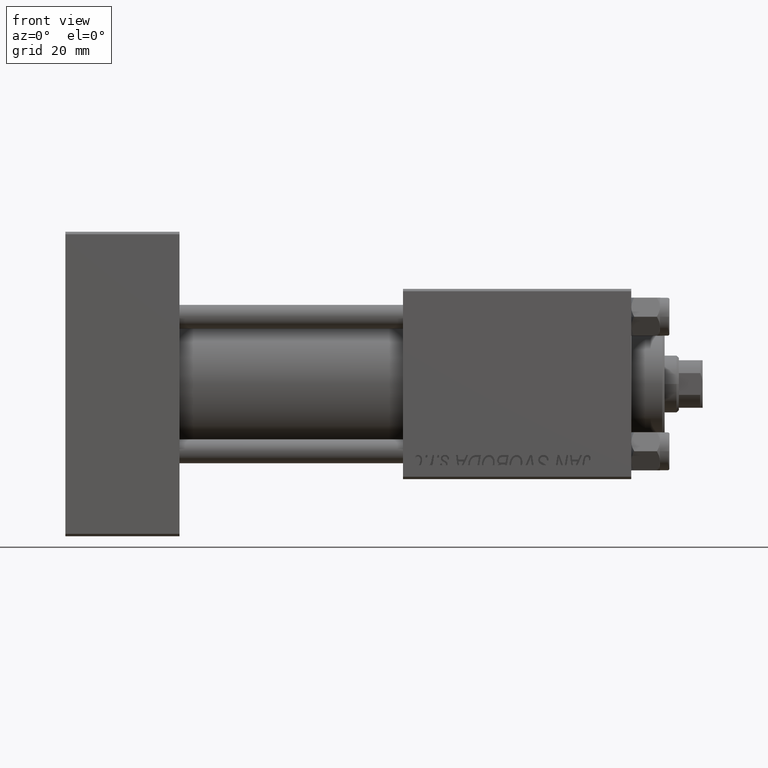
[diagram: clean part render]
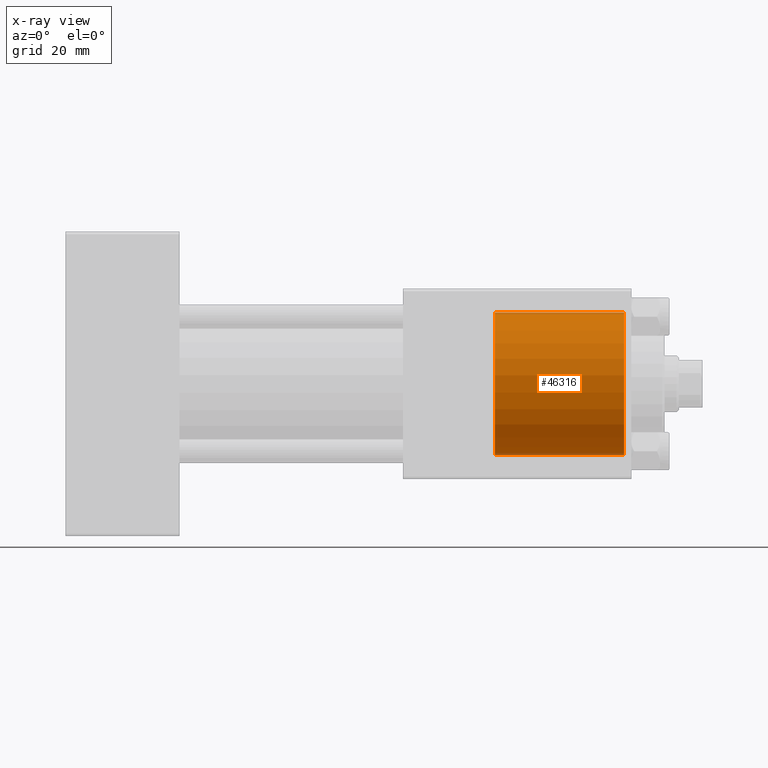
[diagram: x-ray — body ghosted, one internal face saturated and labeled with its STEP entity id]
A machine part, front view, then the same camera in x-ray: the body is ghosted and one INTERNAL B-rep face — a face not visible from any outside direction — is saturated and labeled: STEP entity #46316.
In plain terms, the highlighted cylindrical surface (partial cylindrical patch) has radius 15 mm, axis along (1, 0, 0).
Its self-contained STEP definition (entity closure, byte-faithful):
#964 = FACE_OUTER_BOUND ( 'NONE', #43972, .T. ) ;
#3750 = DIRECTION ( 'NONE',  ( 1.000000000000000000, 0.000000000000000000, 0.000000000000000000 ) ) ;
#4147 = VERTEX_POINT ( 'NONE', #16844 ) ;
#4505 = DIRECTION ( 'NONE',  ( 0.000000000000000000, 0.000000000000000000, -1.000000000000000000 ) ) ;
#8387 = VERTEX_POINT ( 'NONE', #36519 ) ;
#11302 = CIRCLE ( 'NONE', #48424, 15.00000000000000000 ) ;
#11833 = CARTESIAN_POINT ( 'NONE',  ( 117.5000000000000142, 0.000000000000000000, 0.000000000000000000 ) ) ;
#12081 = CARTESIAN_POINT ( 'NONE',  ( 90.30000000000001137, 0.000000000000000000, 0.000000000000000000 ) ) ;
#13715 = CARTESIAN_POINT ( 'NONE',  ( 90.30000000000001137, 1.836970198721029589E-15, 15.00000000000000000 ) ) ;
#14655 = DIRECTION ( 'NONE',  ( 1.000000000000000000, -0.000000000000000000, -0.000000000000000000 ) ) ;
#14899 = CARTESIAN_POINT ( 'NONE',  ( 90.30000000000001137, 0.000000000000000000, -15.00000000000000000 ) ) ;
#16369 = CARTESIAN_POINT ( 'NONE',  ( 117.5000000000000142, 1.836970198721029589E-15, 15.00000000000000000 ) ) ;
#16844 = CARTESIAN_POINT ( 'NONE',  ( 90.30000000000001137, 0.000000000000000000, -15.00000000000000000 ) ) ;
#19155 = DIRECTION ( 'NONE',  ( 0.000000000000000000, 0.000000000000000000, -1.000000000000000000 ) ) ;
#20389 = DIRECTION ( 'NONE',  ( 1.000000000000000000, 0.000000000000000000, 0.000000000000000000 ) ) ;
#22020 = ORIENTED_EDGE ( 'NONE', *, *, #28136, .T. ) ;
#22757 = EDGE_CURVE ( 'NONE', #8387, #46281, #32375, .T. ) ;
#23679 = DIRECTION ( 'NONE',  ( 1.000000000000000000, -0.000000000000000000, -0.000000000000000000 ) ) ;
#25942 = EDGE_CURVE ( 'NONE', #4147, #36218, #42162, .T. ) ;
#27220 = CARTESIAN_POINT ( 'NONE',  ( 90.30000000000001137, 0.000000000000000000, 0.000000000000000000 ) ) ;
#27975 = CYLINDRICAL_SURFACE ( 'NONE', #43910, 15.00000000000000000 ) ;
#28136 = EDGE_CURVE ( 'NONE', #46281, #36218, #11302, .T. ) ;
#28377 = VECTOR ( 'NONE', #14655, 1000.000000000000000 ) ;
#31330 = ORIENTED_EDGE ( 'NONE', *, *, #22757, .T. ) ;
#32375 = LINE ( 'NONE', #13715, #44311 ) ;
#36218 = VERTEX_POINT ( 'NONE', #43833 ) ;
#36519 = CARTESIAN_POINT ( 'NONE',  ( 90.30000000000001137, 1.836970198721029589E-15, 15.00000000000000000 ) ) ;
#38273 = AXIS2_PLACEMENT_3D ( 'NONE', #27220, #3750, #19155 ) ;
#38950 = ORIENTED_EDGE ( 'NONE', *, *, #42427, .F. ) ;
#41513 = CIRCLE ( 'NONE', #38273, 15.00000000000000000 ) ;
#42162 = LINE ( 'NONE', #14899, #28377 ) ;
#42427 = EDGE_CURVE ( 'NONE', #8387, #4147, #41513, .T. ) ;
#43833 = CARTESIAN_POINT ( 'NONE',  ( 117.5000000000000142, 0.000000000000000000, -15.00000000000000000 ) ) ;
#43910 = AXIS2_PLACEMENT_3D ( 'NONE', #12081, #23679, #4505 ) ;
#43972 = EDGE_LOOP ( 'NONE', ( #38950, #31330, #22020, #46703 ) ) ;
#44311 = VECTOR ( 'NONE', #45020, 1000.000000000000000 ) ;
#45020 = DIRECTION ( 'NONE',  ( 1.000000000000000000, -0.000000000000000000, -0.000000000000000000 ) ) ;
#46281 = VERTEX_POINT ( 'NONE', #16369 ) ;
#46316 = ADVANCED_FACE ( 'NONE', ( #964 ), #27975, .F. ) ;
#46652 = DIRECTION ( 'NONE',  ( 0.000000000000000000, 0.000000000000000000, 1.000000000000000000 ) ) ;
#46703 = ORIENTED_EDGE ( 'NONE', *, *, #25942, .F. ) ;
#48424 = AXIS2_PLACEMENT_3D ( 'NONE', #11833, #20389, #46652 ) ;